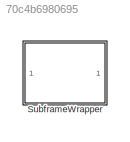
MODEL slx_70c4b6980695
KIND library
CONFIG AbsTol = auto
CONFIG EnableMultiTasking = off
CONFIG FixedStep = auto
CONFIG MaxStep = auto
CONFIG MinStep = auto
CONFIG RelTol = 1e-3
CONFIG SampleTimeConstraint = Unconstrained
CONFIG Solver = VariableStepAuto
CONFIG SolverName = VariableStepAuto
CONFIG StartTime = 0.0
CONFIG StopTime = 10.0
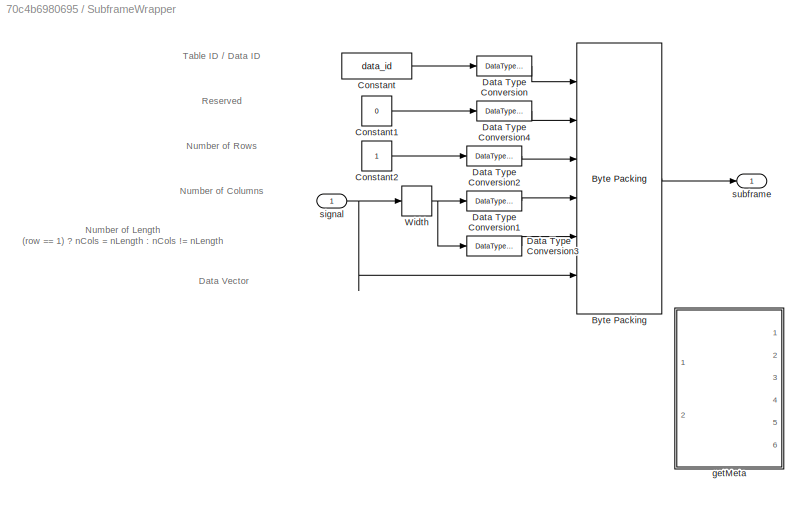
BLOCK [SubSystem] SubframeWrapper
  Ports = [1, 1]
  RequestExecContextInheritance = off
BLOCK [Reference] SubframeWrapper/Byte Packing   REF=xpcutilitieslib/Byte Packing 
  Ports = [6, 1]
  SourceBlock = xpcutilitieslib/Byte Packing
  SourceProductBaseCode = XP
  SourceType = xpcbytepacking
BLOCK [Constant] SubframeWrapper/Constant
  Value = data_id
BLOCK [Constant] SubframeWrapper/Constant1
  Value = 0
BLOCK [Constant] SubframeWrapper/Constant2
BLOCK [DataTypeConversion] SubframeWrapper/Data Type Conversion
  OutDataTypeStr = uint16
  RndMeth = Floor
  SaturateOnIntegerOverflow = off
BLOCK [DataTypeConversion] SubframeWrapper/Data Type Conversion1
  OutDataTypeStr = uint8
  RndMeth = Floor
  SaturateOnIntegerOverflow = off
BLOCK [DataTypeConversion] SubframeWrapper/Data Type Conversion2
  OutDataTypeStr = uint8
  RndMeth = Floor
  SaturateOnIntegerOverflow = off
BLOCK [DataTypeConversion] SubframeWrapper/Data Type Conversion3
  OutDataTypeStr = uint16
  RndMeth = Floor
  SaturateOnIntegerOverflow = off
BLOCK [DataTypeConversion] SubframeWrapper/Data Type Conversion4
  OutDataTypeStr = uint16
  RndMeth = Floor
  SaturateOnIntegerOverflow = off
BLOCK [Width] SubframeWrapper/Width
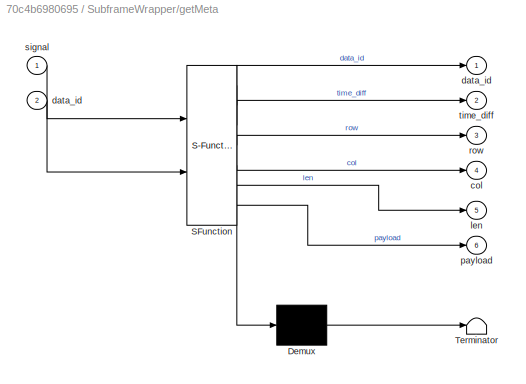
BLOCK [SubSystem] SubframeWrapper/getMeta
  Commented = on
  ErrorFcn = Stateflow.Translate.translate
  PermitHierarchicalResolution = ExplicitOnly
  Ports = [2, 6]
  RequestExecContextInheritance = off
  SFBlockType = MATLAB Function
  TreatAsAtomicUnit = on
BLOCK [Demux] SubframeWrapper/getMeta/ Demux 
  Outputs = 1
  Ports = [1, 1]
BLOCK [S-Function] SubframeWrapper/getMeta/ SFunction 
  EnableBusSupport = on
  FunctionName = sf_sfun
  PortCounts = [2 7]
  Ports = [2, 7]
  SFcnIsStateOwnerBlock = off
  SFunctionDeploymentMode = off
  Tag = Stateflow S-Function 7
BLOCK [Terminator] SubframeWrapper/getMeta/ Terminator 
BLOCK [Outport] SubframeWrapper/getMeta/col
  Port = 4
BLOCK [Outport] SubframeWrapper/getMeta/data_id
BLOCK [Inport] SubframeWrapper/getMeta/data_id 
  Port = 2
BLOCK [Outport] SubframeWrapper/getMeta/len
  Port = 5
BLOCK [Outport] SubframeWrapper/getMeta/payload
  Port = 6
BLOCK [Outport] SubframeWrapper/getMeta/row
  Port = 3
BLOCK [Inport] SubframeWrapper/getMeta/signal
BLOCK [Outport] SubframeWrapper/getMeta/time_diff
  Port = 2
BLOCK [Inport] SubframeWrapper/signal
BLOCK [Outport] SubframeWrapper/subframe
ANNOTATION SubframeWrapper: Data Vector
ANNOTATION SubframeWrapper: Number of Columns
ANNOTATION SubframeWrapper: Number of Length (row == 1) ? nCols = nLength : nCols != nLength
ANNOTATION SubframeWrapper: Number of Rows
ANNOTATION SubframeWrapper: Reserved
ANNOTATION SubframeWrapper: Table ID / Data ID
LINE SubframeWrapper/Byte Packing :1 -> SubframeWrapper/subframe:1
LINE SubframeWrapper/Constant1:1 -> SubframeWrapper/Data Type Conversion4:1
LINE SubframeWrapper/Constant2:1 -> SubframeWrapper/Data Type Conversion2:1
LINE SubframeWrapper/Constant:1 -> SubframeWrapper/Data Type Conversion:1
LINE SubframeWrapper/Data Type Conversion1:1 -> SubframeWrapper/Byte Packing :4
LINE SubframeWrapper/Data Type Conversion2:1 -> SubframeWrapper/Byte Packing :3
LINE SubframeWrapper/Data Type Conversion3:1 -> SubframeWrapper/Byte Packing :5
LINE SubframeWrapper/Data Type Conversion4:1 -> SubframeWrapper/Byte Packing :2
LINE SubframeWrapper/Data Type Conversion:1 -> SubframeWrapper/Byte Packing :1
NET SubframeWrapper/Width:1 -> SubframeWrapper/Data Type Conversion1:1, SubframeWrapper/Data Type Conversion3:1
NET SubframeWrapper/signal:1 -> SubframeWrapper/Byte Packing :6, SubframeWrapper/Width:1
note: NET lines group one-source signal fan-out (src -> all destinations, sorted); 1:1 wires keep LINE
CHART SubframeWrapper/getMeta states=1 transitions=1
  STATE_LABEL 'eML_blk_kernel()'
  STATE_LABEL 'SCRIPT:\nfunction [ data_id,time_diff,row,col,len, payload]=get_meta(signal, data_id)\n[row, col]=size(signal);\nlen = row*col;\ntime_diff = 0;\npayload = signal;'
CHART  states=0 transitions=0
